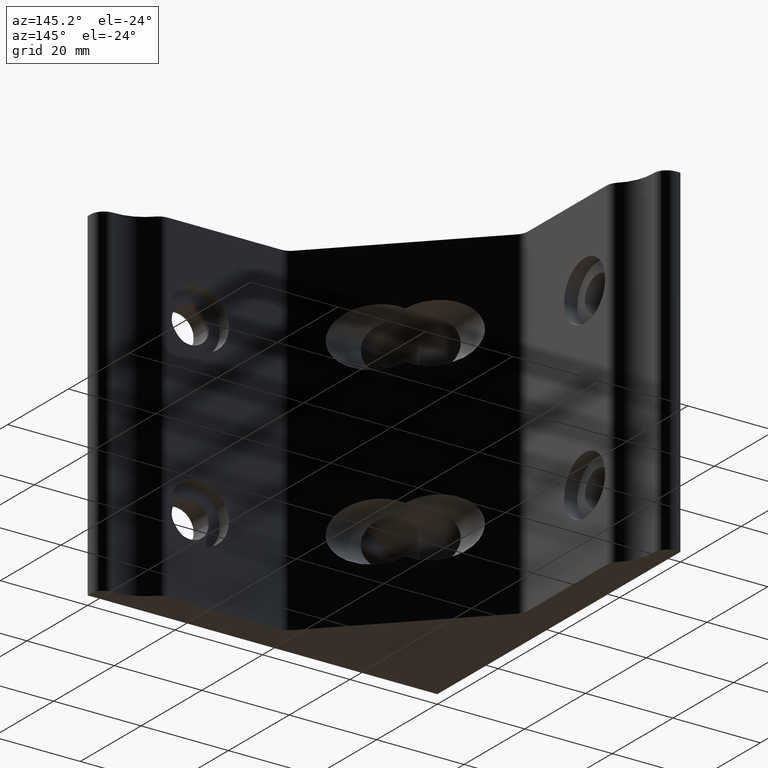
[diagram: clean part render]
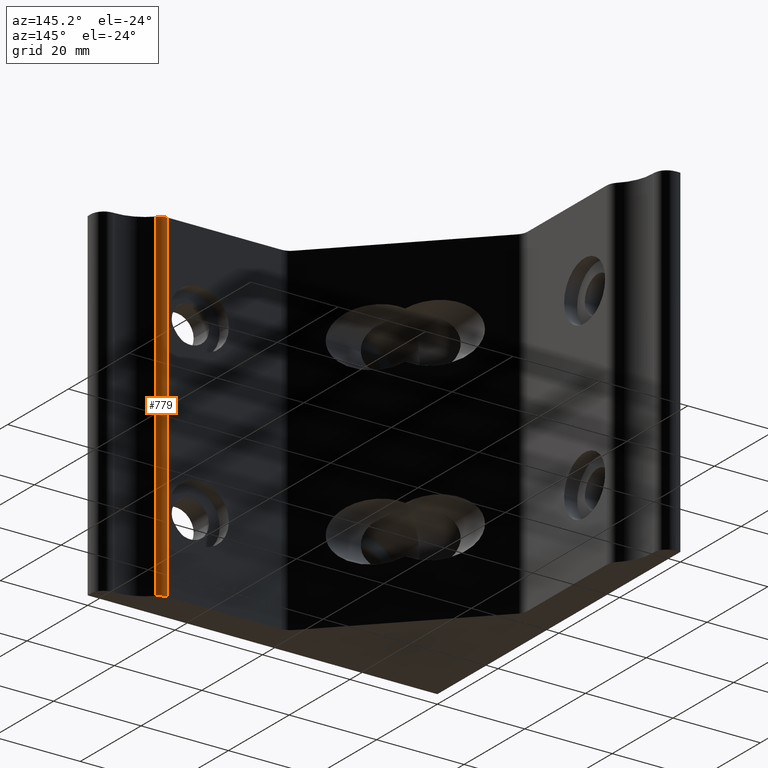
[diagram: same view with one face highlighted and labeled with its STEP entity id]
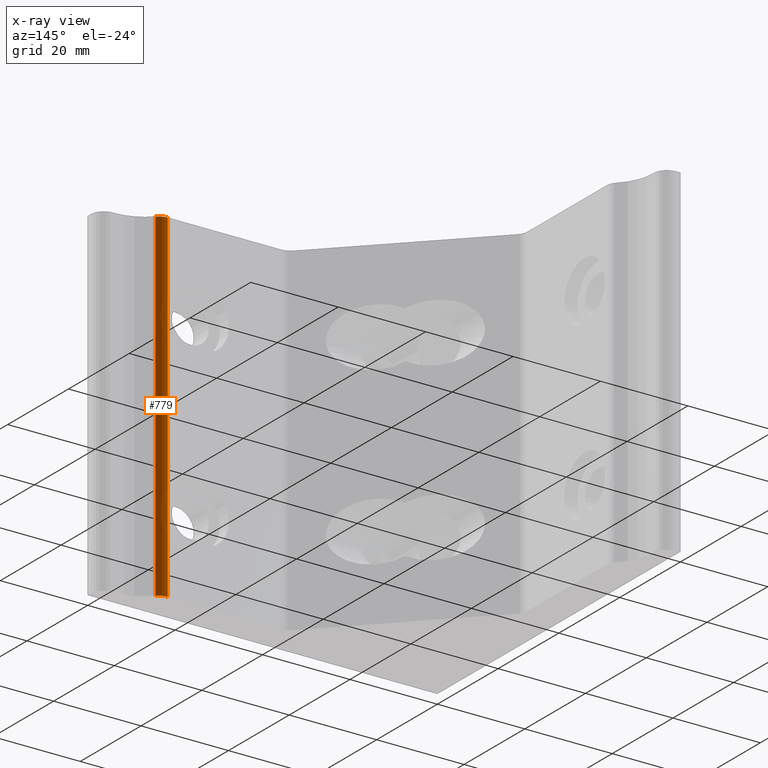
[diagram: x-ray of the same camera — body ghosted, the highlighted face saturated]
A machine part, auxiliary view. The second image highlights one B-rep face of the part: STEP entity #779.
The next image is the same camera in x-ray: the body ghosted, the highlighted face saturated — about 0% of this face is hidden behind the body in this view.
In plain terms, the highlighted cylindrical surface (edge-blend (fillet) strip) has radius 3 mm, axis along (0, 0, 1).
Its self-contained STEP definition (entity closure, byte-faithful):
#57=CIRCLE('',#852,2.99999932597575);
#58=CIRCLE('',#853,2.99999932597575);
#100=CYLINDRICAL_SURFACE('',#851,2.99999932597575);
#129=FACE_OUTER_BOUND('',#176,.T.);
#176=EDGE_LOOP('',(#540,#541,#542,#543));
#247=LINE('',#1241,#298);
#248=LINE('',#1247,#299);
#298=VECTOR('',#968,78.);
#299=VECTOR('',#975,78.);
#349=VERTEX_POINT('',#1238);
#350=VERTEX_POINT('',#1240);
#351=VERTEX_POINT('',#1244);
#352=VERTEX_POINT('',#1246);
#424=EDGE_CURVE('',#349,#350,#247,.T.);
#426=EDGE_CURVE('',#349,#351,#57,.T.);
#427=EDGE_CURVE('',#351,#352,#248,.T.);
#428=EDGE_CURVE('',#350,#352,#58,.T.);
#540=ORIENTED_EDGE('',*,*,#424,.F.);
#541=ORIENTED_EDGE('',*,*,#426,.T.);
#542=ORIENTED_EDGE('',*,*,#427,.T.);
#543=ORIENTED_EDGE('',*,*,#428,.F.);
#779=ADVANCED_FACE('',(#129),#100,.T.);
#851=AXIS2_PLACEMENT_3D('',#1243,#971,#972);
#852=AXIS2_PLACEMENT_3D('',#1245,#973,#974);
#853=AXIS2_PLACEMENT_3D('',#1248,#976,#977);
#968=DIRECTION('',(0.,0.,1.));
#971=DIRECTION('center_axis',(0.,0.,1.));
#972=DIRECTION('ref_axis',(0.721664650576184,0.692242827415896,0.));
#973=DIRECTION('center_axis',(0.,0.,1.));
#974=DIRECTION('ref_axis',(0.,1.,0.));
#975=DIRECTION('',(0.,0.,1.));
#976=DIRECTION('center_axis',(0.,0.,1.));
#977=DIRECTION('ref_axis',(0.,1.,0.));
#1238=CARTESIAN_POINT('',(69.3942783222751,7.07672690762002,-39.));
#1240=CARTESIAN_POINT('',(69.3942783222751,7.07672690762002,39.));
#1241=CARTESIAN_POINT('',(69.3942783222751,7.07672690762002,-39.));
#1243=CARTESIAN_POINT('Origin',(67.229284856966,4.99999889196079,-78.9999738035281));
#1244=CARTESIAN_POINT('',(67.229284856966,7.99999821793654,-39.));
#1245=CARTESIAN_POINT('Origin',(67.229284856966,4.99999889196079,-39.));
#1246=CARTESIAN_POINT('',(67.229284856966,7.99999821793654,39.));
#1247=CARTESIAN_POINT('',(67.229284856966,7.99999821793654,-39.));
#1248=CARTESIAN_POINT('Origin',(67.229284856966,4.99999889196079,39.));